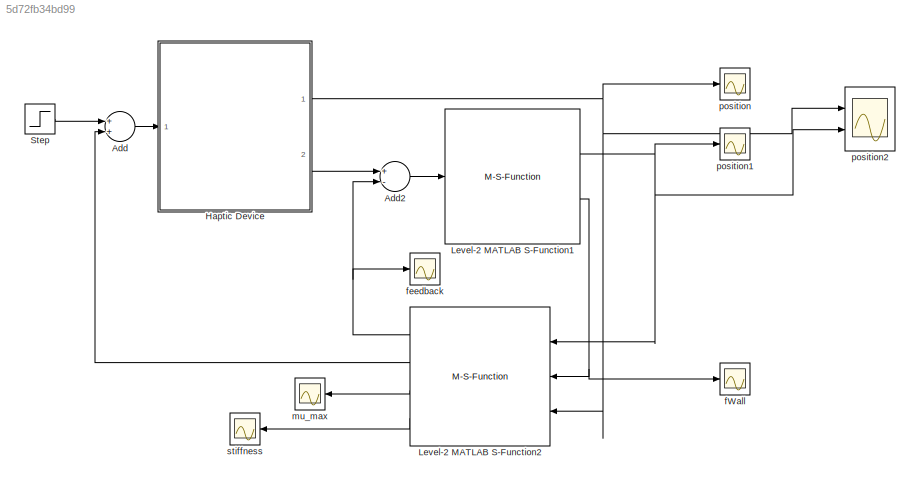
MODEL slx_5d72fb34bd99
KIND model
CONFIG AbsTol = auto
CONFIG FixedStep = auto
CONFIG MaxStep = auto
CONFIG MinStep = auto
CONFIG RelTol = 1e-3
CONFIG SampleTimeConstraint = Unconstrained
CONFIG Solver = VariableStepAuto
CONFIG SolverMode = Auto
CONFIG SolverName = VariableStepAuto
CONFIG StartTime = 0.0
CONFIG StopTime = 50
BLOCK [Sum] Add
  InputSameDT = off
  OutDataTypeStr = Inherit: Inherit via internal rule
  Ports = [2, 1]
  SaturateOnIntegerOverflow = off
BLOCK [Sum] Add2
  InputSameDT = off
  Inputs = +-
  OutDataTypeStr = Inherit: Inherit via internal rule
  Ports = [2, 1]
  SaturateOnIntegerOverflow = off
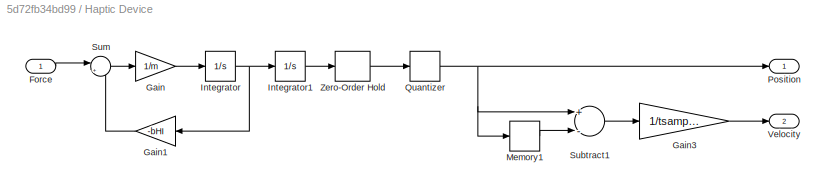
BLOCK [SubSystem] Haptic Device
  Ports = [1, 2]
  RequestExecContextInheritance = off
  Variant = off
BLOCK [Inport] Haptic Device/Force
  IconDisplay = Port number
BLOCK [Gain] Haptic Device/Gain
  Gain = 1/m
  OutDataTypeStr = Inherit: Inherit via internal rule
  ParamDataTypeStr = Inherit: Inherit via internal rule
  SaturateOnIntegerOverflow = off
BLOCK [Gain] Haptic Device/Gain1
  Gain = -bHI
  OutDataTypeStr = Inherit: Inherit via internal rule
  ParamDataTypeStr = Inherit: Inherit via internal rule
  SaturateOnIntegerOverflow = off
BLOCK [Gain] Haptic Device/Gain3
  Gain = 1/tsampling
  OutDataTypeStr = Inherit: Inherit via internal rule
  ParamDataTypeStr = Inherit: Inherit via internal rule
  SaturateOnIntegerOverflow = off
BLOCK [Integrator] Haptic Device/Integrator
  InitialCondition = x_dot0
  Ports = [1, 1]
BLOCK [Integrator] Haptic Device/Integrator1
  InitialCondition = x0
  Ports = [1, 1]
BLOCK [Memory] Haptic Device/Memory1
  X0 = x0
BLOCK [Outport] Haptic Device/Position
  IconDisplay = Port number
BLOCK [Quantizer] Haptic Device/Quantizer
  QuantizationInterval = 0.00005
BLOCK [Sum] Haptic Device/Subtract1
  InputSameDT = off
  Inputs = +-
  OutDataTypeStr = Inherit: Inherit via internal rule
  Ports = [2, 1]
  SaturateOnIntegerOverflow = off
BLOCK [Sum] Haptic Device/Sum
  IconShape = round
  InputSameDT = off
  Inputs = |++
  OutDataTypeStr = Inherit: Inherit via internal rule
  Ports = [2, 1]
  SaturateOnIntegerOverflow = off
BLOCK [Outport] Haptic Device/Velocity
  IconDisplay = Port number
  Port = 2
BLOCK [ZeroOrderHold] Haptic Device/Zero-Order Hold
  SampleTime = tsampling
BLOCK [M-S-Function] Level-2 MATLAB S-Function1
  FunctionName = virtual_environment
  Parameters = kWall,bWall,nWall,xWall,x_dot0,x0,dof,tsampling
  Ports = [1, 2]
BLOCK [M-S-Function] Level-2 MATLAB S-Function2
  FunctionName = controller
  Parameters = tau,dof,tsampling,x0,xWall,nWall
  Ports = [3, 4]
BLOCK [Step] Step
  After = -10
  SampleTime = 0
  Time = 0.35
BLOCK [Scope] fWall
  Ports = [1]
  ScopeSpecificationString = Simulink.scopes.TimeScopeBlockCfg('CurrentConfiguration', extmgr.ConfigurationSet(extmgr.Configuration('Core','General UI',true),extmgr.Configuration('Core','Source UI',true),extmgr.Configuration('Sources','WiredSimulink',true,'DataLoggingVariableName','ScopeData2'),extmgr.Configuration('Visuals','Time Domain',true,'SerializedDisplays',{struct('MinYLimReal','-6.25378','MaxYLimReal','0.69486','YLab...<+1487ch>
BLOCK [Scope] feedback
  Ports = [1]
  ScopeSpecificationString = Simulink.scopes.TimeScopeBlockCfg('CurrentConfiguration', extmgr.ConfigurationSet(extmgr.Configuration('Core','General UI',true),extmgr.Configuration('Core','Source UI',true),extmgr.Configuration('Sources','WiredSimulink',true,'DataLoggingVariableName','ScopeData4'),extmgr.Configuration('Visuals','Time Domain',true,'SerializedDisplays',{struct('MinYLimReal','-0.10163','MaxYLimReal','0.24005','YLab...<+1441ch>
BLOCK [Scope] mu_max
  Ports = [1]
  ScopeSpecificationString = Simulink.scopes.TimeScopeBlockCfg('CurrentConfiguration', extmgr.ConfigurationSet(extmgr.Configuration('Core','General UI',true),extmgr.Configuration('Core','Source UI',true),extmgr.Configuration('Sources','WiredSimulink',true,'DataLoggingVariableName','ScopeData3'),extmgr.Configuration('Visuals','Time Domain',true,'SerializedDisplays',{struct('MinYLimReal','-1252.00000','MaxYLimReal','11268.00000...<+1465ch>
BLOCK [Scope] position
  Ports = [1]
  ScopeSpecificationString = Simulink.scopes.TimeScopeBlockCfg('CurrentConfiguration', extmgr.ConfigurationSet(extmgr.Configuration('Core','General UI',true),extmgr.Configuration('Core','Source UI',true),extmgr.Configuration('Sources','WiredSimulink',true,'DataLoggingVariableName','ScopeData1'),extmgr.Configuration('Visuals','Time Domain',true,'SerializedDisplays',{struct('MinYLimReal','-0.57937','MaxYLimReal','0.21993','YLab...<+1472ch>
BLOCK [Scope] position1
  Ports = [1]
  ScopeSpecificationString = Simulink.scopes.TimeScopeBlockCfg('CurrentConfiguration', extmgr.ConfigurationSet(extmgr.Configuration('Core','General UI',true),extmgr.Configuration('Core','Source UI',true),extmgr.Configuration('Sources','WiredSimulink',true,'DataLoggingVariableName','ScopeData1'),extmgr.Configuration('Visuals','Time Domain',true,'SerializedDisplays',{struct('MinYLimReal','0.07054','MaxYLimReal','0.1462','YLabel...<+1479ch>
BLOCK [Scope] position2
  NumInputPorts = 2
  Ports = [2]
  ScopeSpecificationString = Simulink.scopes.TimeScopeBlockCfg('CurrentConfiguration', extmgr.ConfigurationSet(extmgr.Configuration('Core','General UI',true),extmgr.Configuration('Core','Source UI',true),extmgr.Configuration('Sources','WiredSimulink',true,'DataLoggingVariableName','ScopeData1'),extmgr.Configuration('Visuals','Time Domain',true,'SerializedDisplays',{struct('MinYLimReal','-0.57937','MaxYLimReal','0.21993','YLab...<+1504ch>
BLOCK [Scope] stiffness
  Ports = [1]
  ScopeSpecificationString = Simulink.scopes.TimeScopeBlockCfg('CurrentConfiguration', extmgr.ConfigurationSet(extmgr.Configuration('Core','General UI',true),extmgr.Configuration('Core','Source UI',true),extmgr.Configuration('Sources','WiredSimulink',true,'DataLoggingVariableName','ScopeData2'),extmgr.Configuration('Visuals','Time Domain',true,'SerializedDisplays',{struct('MinYLimReal','-325.43615','MaxYLimReal','442.93912','...<+1499ch>
LINE Add2:1 -> Level-2 MATLAB S-Function1:1
LINE Add:1 -> Haptic Device:1
LINE Haptic Device/Force:1 -> Haptic Device/Sum:1
LINE Haptic Device/Gain1:1 -> Haptic Device/Sum:2
LINE Haptic Device/Gain3:1 -> Haptic Device/Velocity:1
LINE Haptic Device/Gain:1 -> Haptic Device/Integrator:1
LINE Haptic Device/Integrator1:1 -> Haptic Device/Zero-Order Hold:1
NET Haptic Device/Integrator:1 -> Haptic Device/Gain1:1, Haptic Device/Integrator1:1
LINE Haptic Device/Memory1:1 -> Haptic Device/Subtract1:2
NET Haptic Device/Quantizer:1 -> Haptic Device/Memory1:1, Haptic Device/Position:1, Haptic Device/Subtract1:1
LINE Haptic Device/Subtract1:1 -> Haptic Device/Gain3:1
LINE Haptic Device/Sum:1 -> Haptic Device/Gain:1
LINE Haptic Device/Zero-Order Hold:1 -> Haptic Device/Quantizer:1
NET Haptic Device:1 -> Level-2 MATLAB S-Function2:3, position2:1, position:1
LINE Haptic Device:2 -> Add2:1
NET Level-2 MATLAB S-Function1:1 -> Level-2 MATLAB S-Function2:1, position1:1, position2:2
NET Level-2 MATLAB S-Function1:2 -> Level-2 MATLAB S-Function2:2, fWall:1
NET Level-2 MATLAB S-Function2:1 -> Add2:2, feedback:1
LINE Level-2 MATLAB S-Function2:2 -> Add:2
LINE Level-2 MATLAB S-Function2:3 -> mu_max:1
LINE Level-2 MATLAB S-Function2:4 -> stiffness:1
LINE Step:1 -> Add:1
note: NET lines group one-source signal fan-out (src -> all destinations, sorted); 1:1 wires keep LINE
